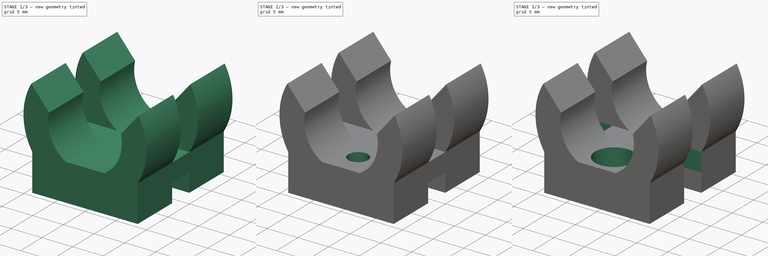
[diagram: build sequence overview — one tinted view per stage of 3, left to right]
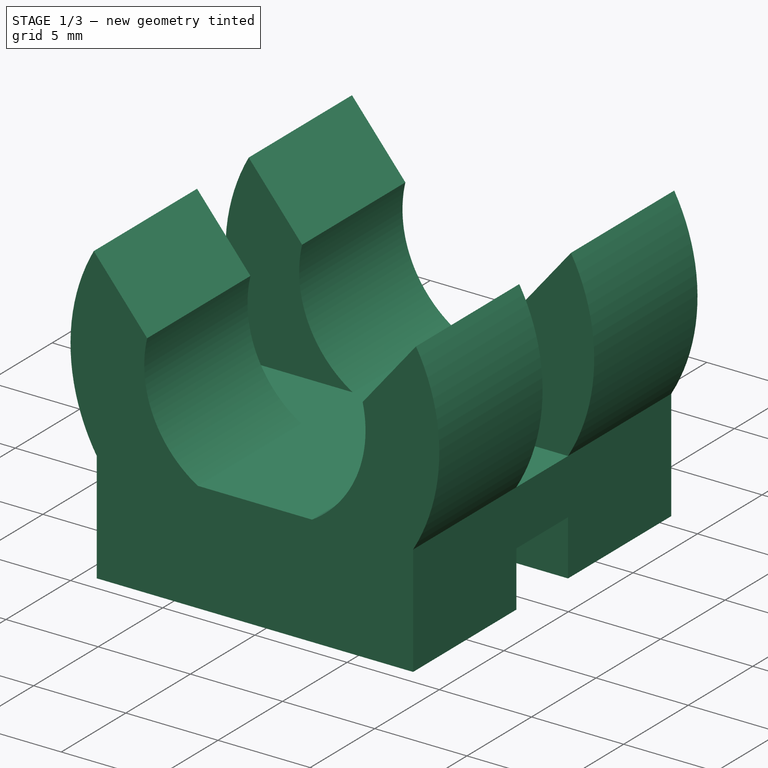
[diagram: stage 1 of 3 — iso view after this stage's code; geometry added in this stage tinted green]
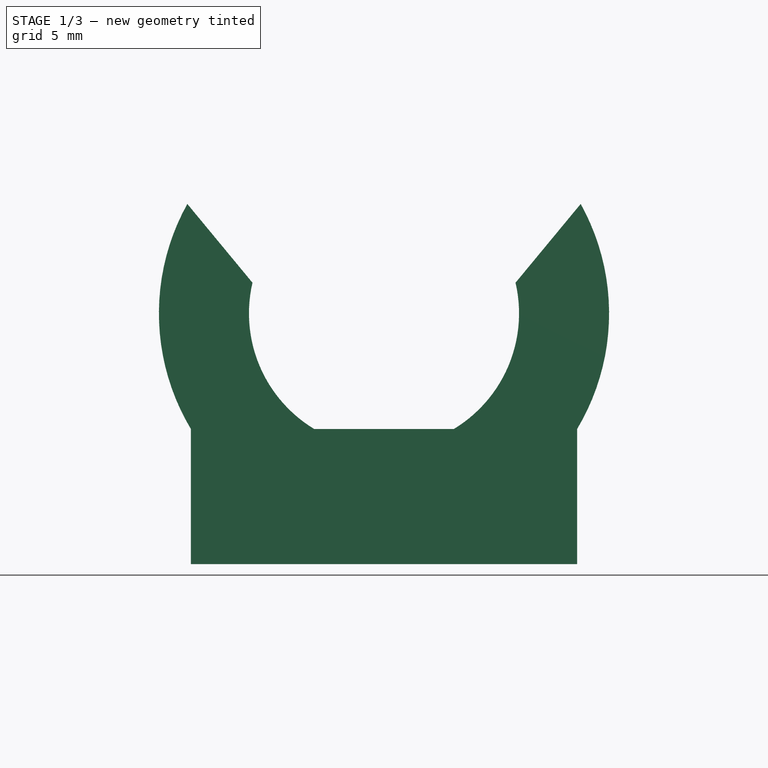
[diagram: stage 1 of 3 — front view after this stage's code; geometry added in this stage tinted green]
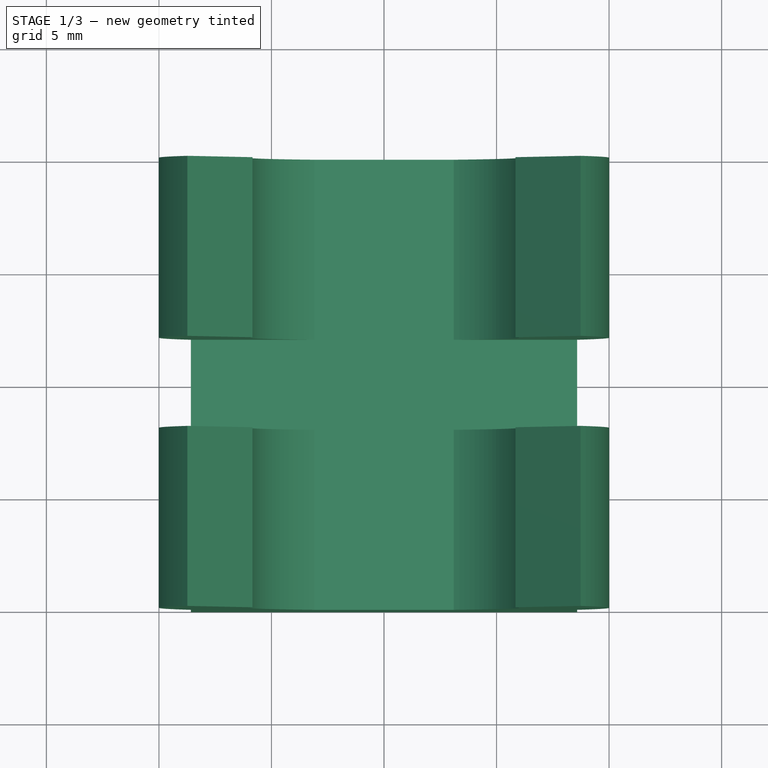
[diagram: stage 1 of 3 — top view after this stage's code; geometry added in this stage tinted green]
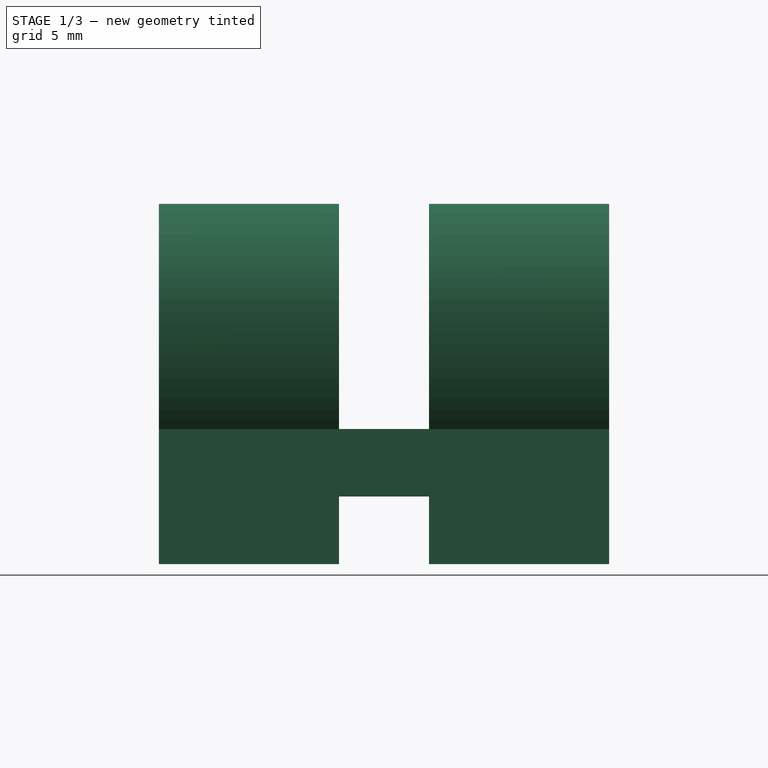
[diagram: stage 1 of 3 — right view after this stage's code; geometry added in this stage tinted green]
FCSTD DOCUMENT  (FreeCAD 0.20R)
Label: cable_holder
License: All rights reserved
LicenseURL: http://en.wikipedia.org/wiki/All_rights_reserved
objects: Sketcher::SketchObject×5, PartDesign::Pocket×4, PartDesign::Pad×1, PartDesign::Body×1
note: 16 computed .brp shape members not serialized (recipe doc carries the construction recipe); baked Part::Feature solids carry a one-line shape summary decoded from their .brp

FEATURE [Sketcher::SketchObject] Sketch
  FullyConstrained = true
  MapMode = 5
  Placement = pos=(0,0,0) rot=(1,0,0;1.5708rad)
  Support = -> [XZ_Plane]
  sketch-geometry (12):
    g0: ArcOfCircle CenterX=0 CenterY=5.13712 CenterZ=0 NormalX=0 NormalY=0 NormalZ=1 AngleXU=0 Radius=10 StartAngle=2.63376 EndAngle=3.6811
    g1: ArcOfCircle CenterX=0 CenterY=5.13712 CenterZ=0 NormalX=0 NormalY=0 NormalZ=1 AngleXU=0 Radius=10 StartAngle=5.74368 EndAngle=6.79102
    g2: ArcOfCircle CenterX=0 CenterY=5.13712 CenterZ=0 NormalX=0 NormalY=0 NormalZ=1 AngleXU=0 Radius=6 StartAngle=2.91245 EndAngle=4.16944
    g3: ArcOfCircle CenterX=0 CenterY=5.13712 CenterZ=0 NormalX=0 NormalY=0 NormalZ=1 AngleXU=0 Radius=6 StartAngle=5.25534 EndAngle=6.51233
    g4: LineSegment StartX=-5.84316 StartY=6.5 StartZ=0 EndX=5.84316 EndY=6.5 EndZ=0
    g5: LineSegment StartX=-3.1 StartY=-9e-16 StartZ=0 EndX=3.1 EndY=-9e-16 EndZ=0
    g6: LineSegment StartX=-5.84316 StartY=6.5 StartZ=0 EndX=-8.73799 EndY=10 EndZ=0
    g7: LineSegment StartX=5.84316 StartY=6.5 StartZ=0 EndX=8.73799 EndY=10 EndZ=0
    g8: LineSegment StartX=-8.73799 StartY=10 StartZ=0 EndX=8.73799 EndY=10 EndZ=0
    g9: LineSegment StartX=-8.57963 StartY=-9e-16 StartZ=0 EndX=-8.57963 EndY=-6 EndZ=0
    g10: LineSegment StartX=-8.57963 StartY=-6 StartZ=0 EndX=8.57963 EndY=-6 EndZ=0
    g11: LineSegment StartX=8.57963 StartY=-6 StartZ=0 EndX=8.57963 EndY=-3.6e-15 EndZ=0
  constraints (35):
    c: PointOnObject(g0,g-2)
    c: PointOnObject(g0,g-1)
    c: Coincident(g1,g0)
    c: PointOnObject(g1,g-1)
    c: Equal(g0,g1)
    c: Radius(g0) = 10
    c: Coincident(g2,g0)
    c: Coincident(g3,g0)
    c: Equal(g2,g3)
    c: Diameter(g2) = 12
    c: Coincident(g4,g2)
    c: Coincident(g4,g3)
    c: Horizontal(g4)
    c: Coincident(g5,g2)
    c: Coincident(g5,g3)
    c: Horizontal(g5)
    c: Coincident(g6,g2)
    c: Coincident(g6,g0)
    c: Coincident(g7,g3)
    c: Coincident(g7,g1)
    c: Coincident(g8,g0)
    c: Coincident(g8,g1)
    c: Horizontal(g8)
    c: Distance(g3,g5) = 6.5
    c: Coincident(g0,g9)
    c: Vertical(g9)
    c: Coincident(g9,g10)
    c: Horizontal(g10)
    c: Coincident(g10,g11)
    c: Coincident(g11,g1)
    c: Vertical(g11)
    c: Distance(g3,g10) = 6
    c: DistanceX(g5,g5) = 6.2
    c: PointOnObject(g2,g-1)
    c: DistanceY(g-1,g1) = 10
FEATURE [PartDesign::Pad] Pad
  Direction = (0,-1,2e-16)
  Length = 20
  Length2 = 10
  Midplane = true
  Placement = pos=(0,0,0) rot=(1,0,0;1.5708rad)
  Profile = -> Sketch
  ReferenceAxis = -> Sketch [N_Axis]
  Type = 0
FEATURE [Sketcher::SketchObject] Sketch001
  ExternalGeometry = -> [Pad]
  FullyConstrained = true
  MapMode = 5
  Placement = pos=(8.57963,0,0) rot=(0.707107,0,0.707107;3.14159rad)
  Support = -> [Pad]
  sketch-geometry (8):
    g0: LineSegment StartX=10 StartY=2 StartZ=0 EndX=0 EndY=2 EndZ=0
    g1: LineSegment StartX=0 StartY=2 StartZ=0 EndX=0 EndY=-2 EndZ=0
    g2: LineSegment StartX=0 StartY=-2 StartZ=0 EndX=10 EndY=-2 EndZ=0
    g3: LineSegment StartX=10 StartY=-2 StartZ=0 EndX=10 EndY=2 EndZ=0
    g4: LineSegment StartX=-6 StartY=2 StartZ=0 EndX=-3 EndY=2 EndZ=0
    g5: LineSegment StartX=-3 StartY=2 StartZ=0 EndX=-3 EndY=-2 EndZ=0
    g6: LineSegment StartX=-3 StartY=-2 StartZ=0 EndX=-6 EndY=-2 EndZ=0
    g7: LineSegment StartX=-6 StartY=-2 StartZ=0 EndX=-6 EndY=2 EndZ=0
  constraints (22):
    c: Coincident(g0,g1)
    c: Coincident(g1,g2)
    c: Coincident(g2,g3)
    c: Coincident(g3,g0)
    c: Horizontal(g0)
    c: Horizontal(g2)
    c: Vertical(g1)
    c: PointOnObject(g1,g-2)
    c: Symmetric(g2,g0,g-1)
    c: Distance(g3) = 4
    c: PointOnObject(g2,g-3)
    c: Coincident(g4,g5)
    c: Coincident(g5,g6)
    c: Coincident(g6,g7)
    c: Coincident(g7,g4)
    c: Horizontal(g4)
    c: Horizontal(g6)
    c: Vertical(g5)
    c: PointOnObject(g4,g-4)
    c: Distance(g6) = 3
    c: Symmetric(g6,g4,g-1)
    c: Distance(g5) = 4
FEATURE [PartDesign::Pocket] Pocket
  BaseFeature = -> Pad
  Direction = (-1,0,2e-16)
  Length = 5
  Length2 = 5
  Midplane = true
  Placement = pos=(0,0,0) rot=(1,0,0;1.5708rad)
  Profile = -> Sketch001
  ReferenceAxis = -> Sketch001 [N_Axis]
  Type = 1
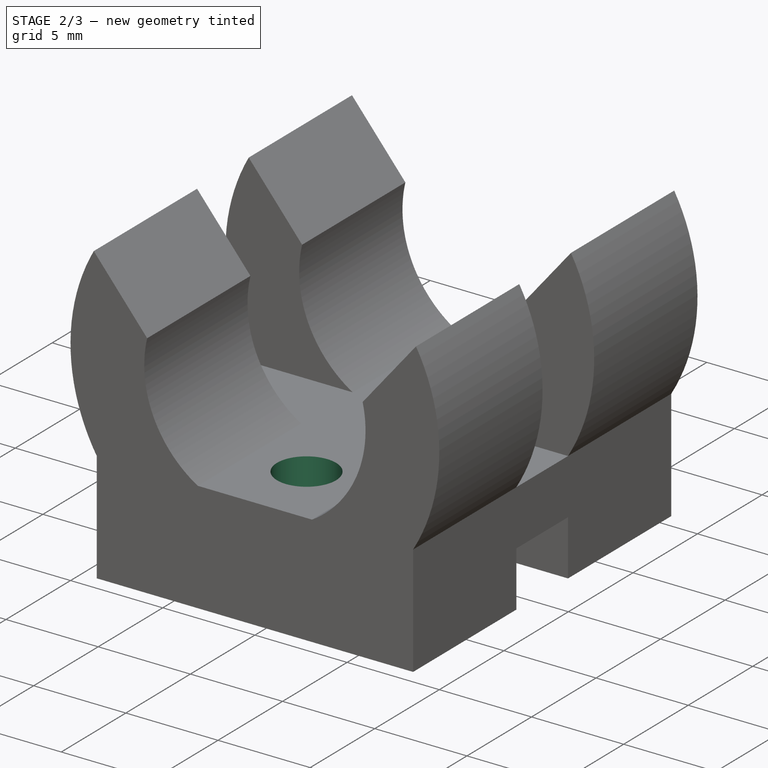
[diagram: stage 2 of 3 — iso view after this stage's code; geometry added in this stage tinted green]
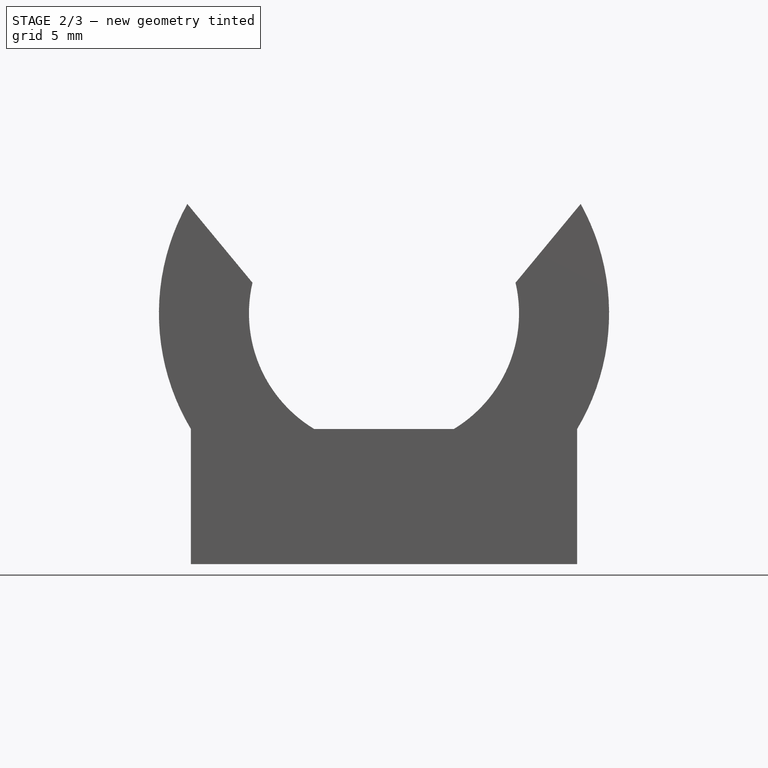
[diagram: stage 2 of 3 — front view after this stage's code; geometry added in this stage tinted green]
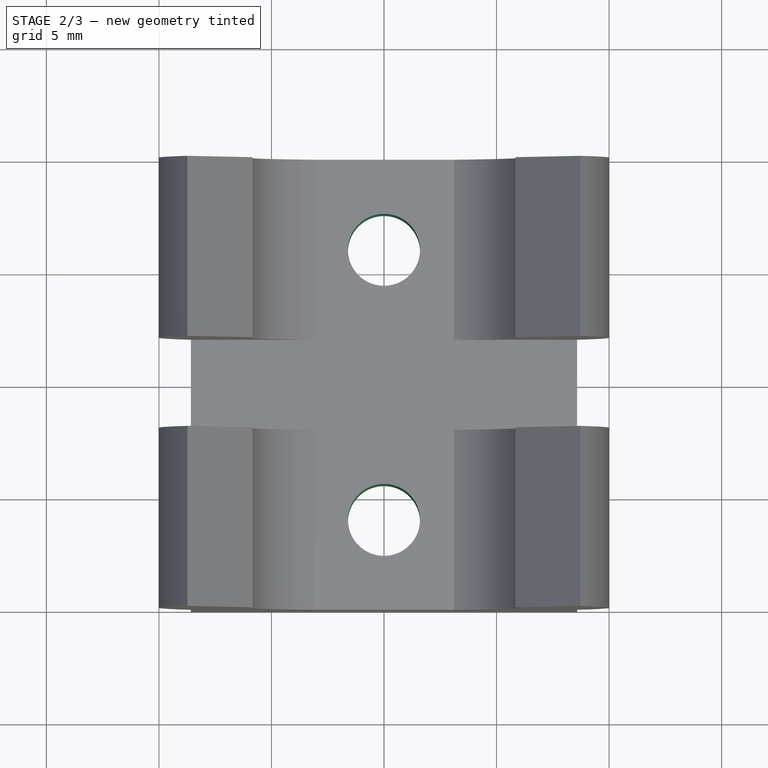
[diagram: stage 2 of 3 — top view after this stage's code; geometry added in this stage tinted green]
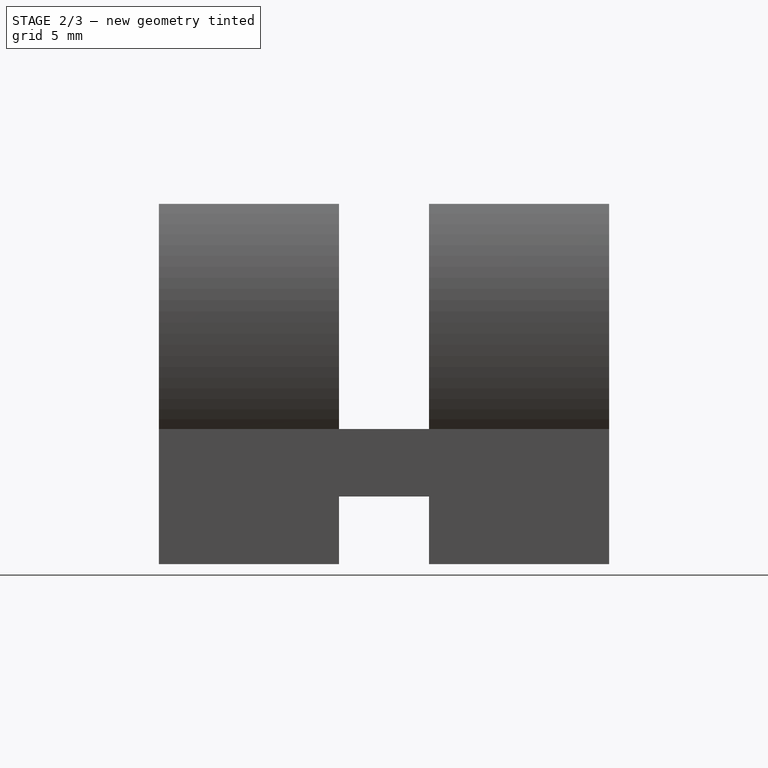
[diagram: stage 2 of 3 — right view after this stage's code; geometry added in this stage tinted green]
FEATURE [Sketcher::SketchObject] Sketch002
  FullyConstrained = true
  MapMode = 5
  Placement = pos=(0,0,-9e-16) rot=(0,0,1;3.14159rad)
  Support = -> [Pocket]
  sketch-geometry (2):
    g0: Circle CenterX=0 CenterY=6 CenterZ=0 NormalX=0 NormalY=0 NormalZ=1 AngleXU=0 Radius=1.6
    g1: Circle CenterX=0 CenterY=-6 CenterZ=0 NormalX=0 NormalY=0 NormalZ=1 AngleXU=0 Radius=1.6
  constraints (5):
    c: PointOnObject(g0,g-2)
    c: Symmetric(g0,g1,g-1)
    c: Diameter(g0) = 3.2
    c: Equal(g1,g0)
    c: DistanceY(g-1,g0) = 6
FEATURE [PartDesign::Pocket] Pocket001
  BaseFeature = -> Pocket
  Direction = (0,-2e-16,-1)
  Length = 5
  Length2 = 5
  Placement = pos=(0,0,0) rot=(1,0,0;1.5708rad)
  Profile = -> Sketch002
  ReferenceAxis = -> Sketch002 [N_Axis]
  Type = 1
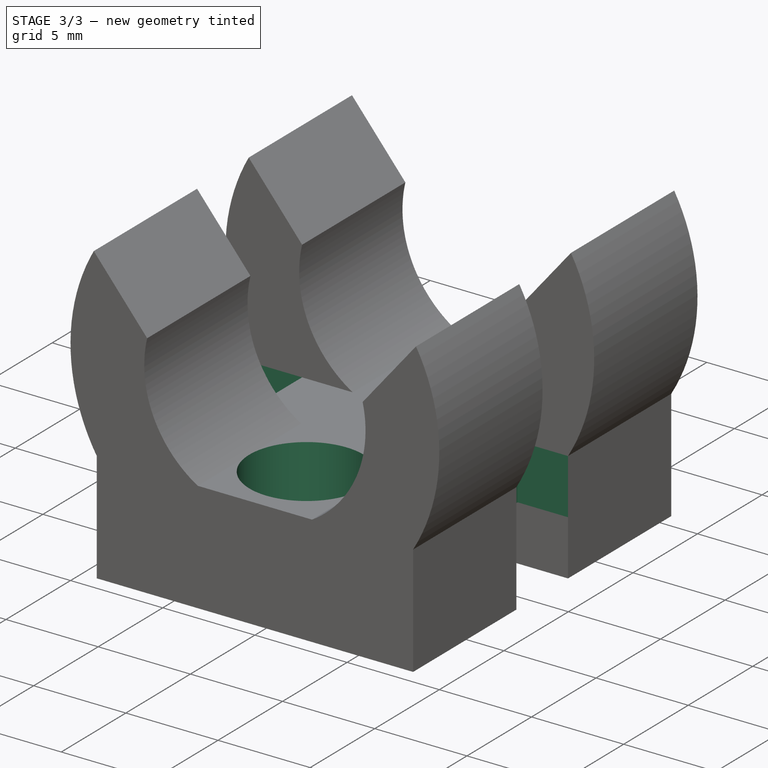
[diagram: stage 3 of 3 — iso view after this stage's code; geometry added in this stage tinted green]
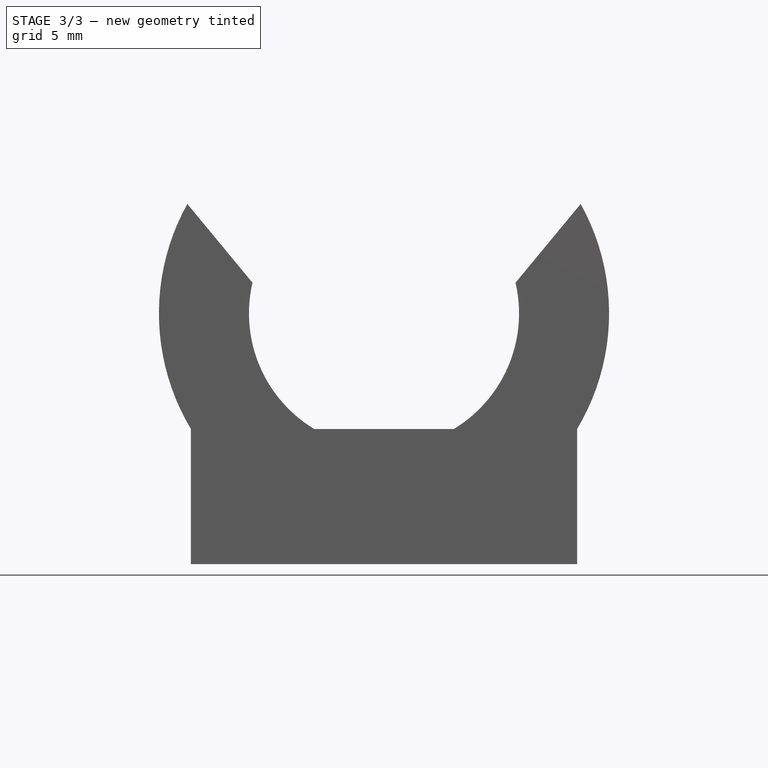
[diagram: stage 3 of 3 — front view after this stage's code; geometry added in this stage tinted green]
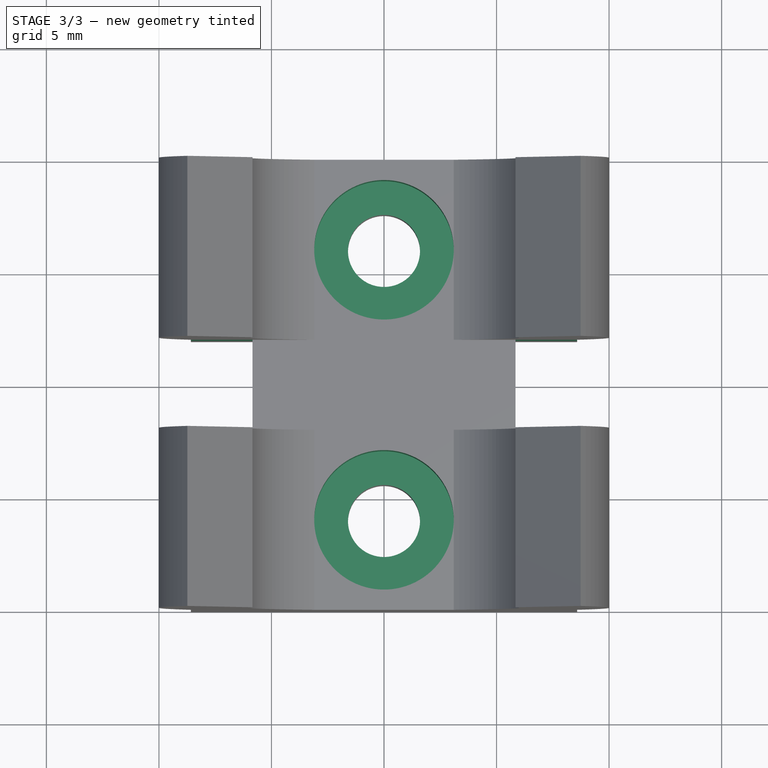
[diagram: stage 3 of 3 — top view after this stage's code; geometry added in this stage tinted green]
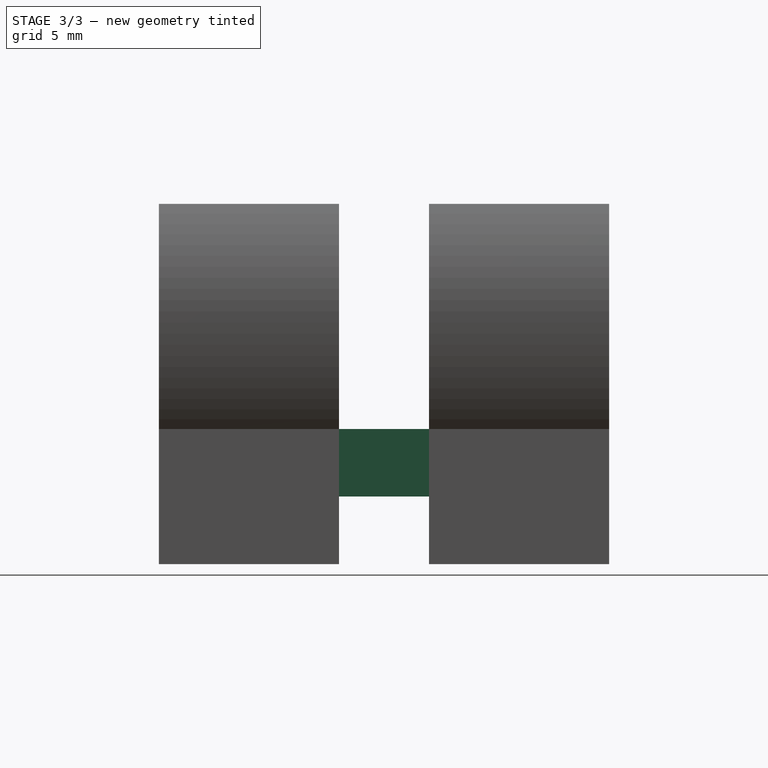
[diagram: stage 3 of 3 — right view after this stage's code; geometry added in this stage tinted green]
FEATURE [Sketcher::SketchObject] Sketch003
  ExternalGeometry = -> [Pocket001]
  FullyConstrained = true
  MapMode = 5
  Placement = pos=(0,0,-9e-16) rot=(0,0,1;3.14159rad)
  Support = -> [Pocket001]
  sketch-geometry (2):
    g0: Circle CenterX=0 CenterY=6 CenterZ=0 NormalX=0 NormalY=0 NormalZ=1 AngleXU=0 Radius=3.1
    g1: Circle CenterX=0 CenterY=-6 CenterZ=0 NormalX=0 NormalY=0 NormalZ=1 AngleXU=0 Radius=3.1
  constraints (4):
    c: Coincident(g0,g-3)
    c: Coincident(g1,g-4)
    c: Diameter(g0) = 6.2
    c: Equal(g1,g0)
FEATURE [PartDesign::Pocket] Pocket002
  BaseFeature = -> Pocket001
  Direction = (0,-2e-16,-1)
  Length = 3
  Length2 = 5
  Placement = pos=(0,0,0) rot=(1,0,0;1.5708rad)
  Profile = -> Sketch003
  ReferenceAxis = -> Sketch003 [N_Axis]
  Type = 0
FEATURE [Sketcher::SketchObject] Sketch004
  ExternalGeometry = -> [Pocket002]
  FullyConstrained = true
  MapMode = 5
  Placement = pos=(0,0,1.9e-15) rot=(0,0,1;3.14159rad)
  Support = -> [Pocket002]
  sketch-geometry (8):
    g0: LineSegment StartX=-8.57963 StartY=2 StartZ=0 EndX=-5.84316 EndY=2 EndZ=0
    g1: LineSegment StartX=-5.84316 StartY=2 StartZ=0 EndX=-5.84316 EndY=-2 EndZ=0
    g2: LineSegment StartX=-5.84316 StartY=-2 StartZ=0 EndX=-8.57963 EndY=-2 EndZ=0
    g3: LineSegment StartX=-8.57963 StartY=-2 StartZ=0 EndX=-8.57963 EndY=2 EndZ=0
    g4: LineSegment StartX=5.84316 StartY=2 StartZ=0 EndX=8.57963 EndY=2 EndZ=0
    g5: LineSegment StartX=8.57963 StartY=2 StartZ=0 EndX=8.57963 EndY=-2 EndZ=0
    g6: LineSegment StartX=8.57963 StartY=-2 StartZ=0 EndX=5.84316 EndY=-2 EndZ=0
    g7: LineSegment StartX=5.84316 StartY=-2 StartZ=0 EndX=5.84316 EndY=2 EndZ=0
  constraints (20):
    c: Coincident(g0,g1)
    c: Coincident(g1,g2)
    c: Coincident(g2,g3)
    c: Coincident(g3,g0)
    c: Horizontal(g0)
    c: Horizontal(g2)
    c: Vertical(g1)
    c: Vertical(g3)
    c: Coincident(g0,g-3)
    c: Coincident(g1,g-5)
    c: Coincident(g4,g5)
    c: Coincident(g5,g6)
    c: Coincident(g6,g7)
    c: Coincident(g7,g4)
    c: Horizontal(g4)
    c: Horizontal(g6)
    c: Vertical(g5)
    c: Vertical(g7)
    c: Coincident(g4,g-9)
    c: Coincident(g5,g-8)
FEATURE [PartDesign::Pocket] Pocket003
  BaseFeature = -> Pocket002
  Direction = (-2e-16,0,-1)
  Length = 5
  Length2 = 5
  Placement = pos=(0,0,0) rot=(1,0,0;1.5708rad)
  Profile = -> Sketch004
  ReferenceAxis = -> Sketch004 [N_Axis]
  Type = 0
FEATURE [PartDesign::Body] Body
  Group = -> [Sketch,Pad,Sketch001,Pocket,Sketch002,Pocket001,Sketch003,Pocket002,Sketch004,Pocket003]
  Origin = -> Origin
  Tip = -> Pocket003
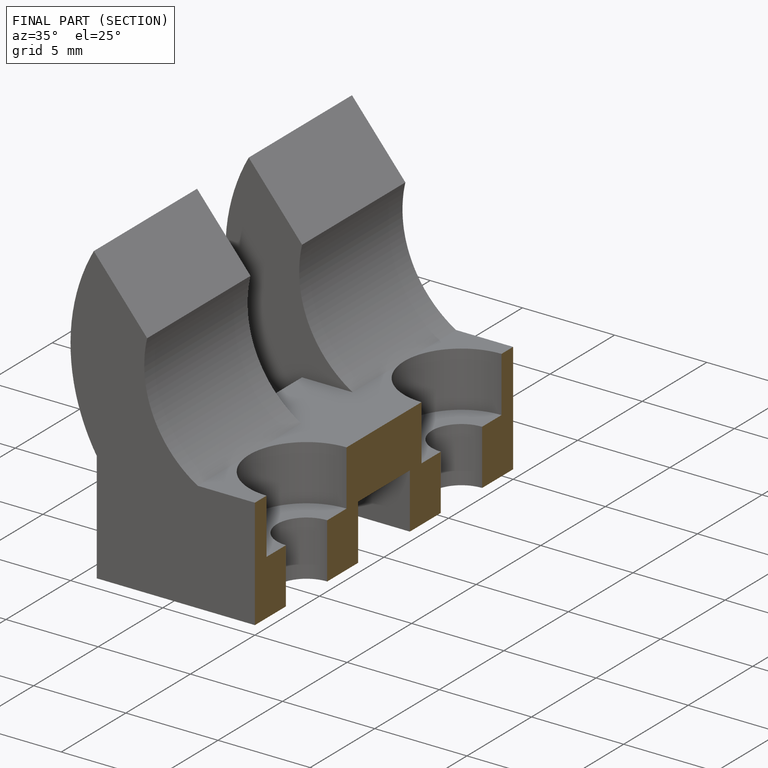
[diagram: finished part — half-section view (interior)]
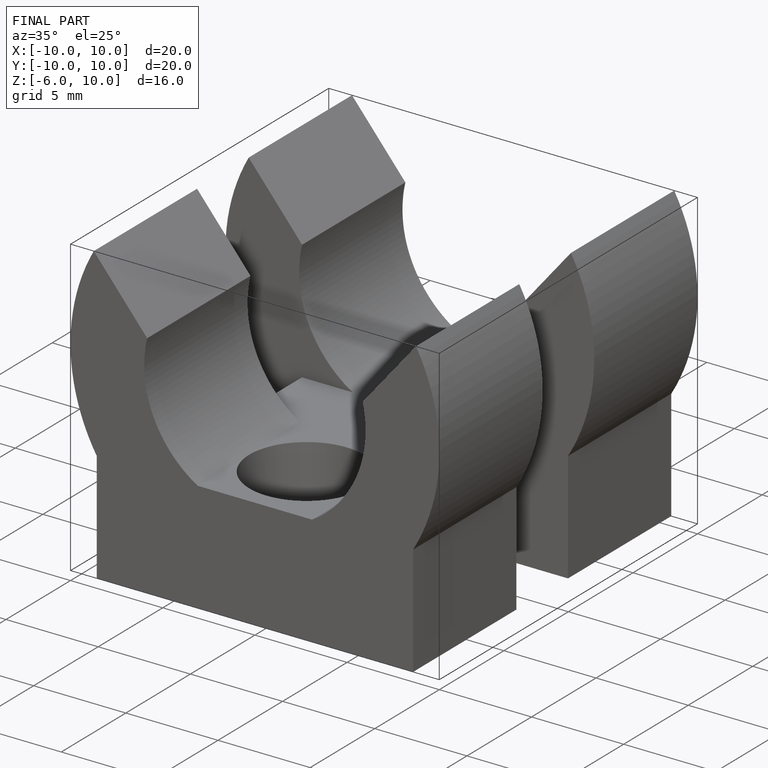
[diagram: finished part — iso view with bounding-box wireframe]
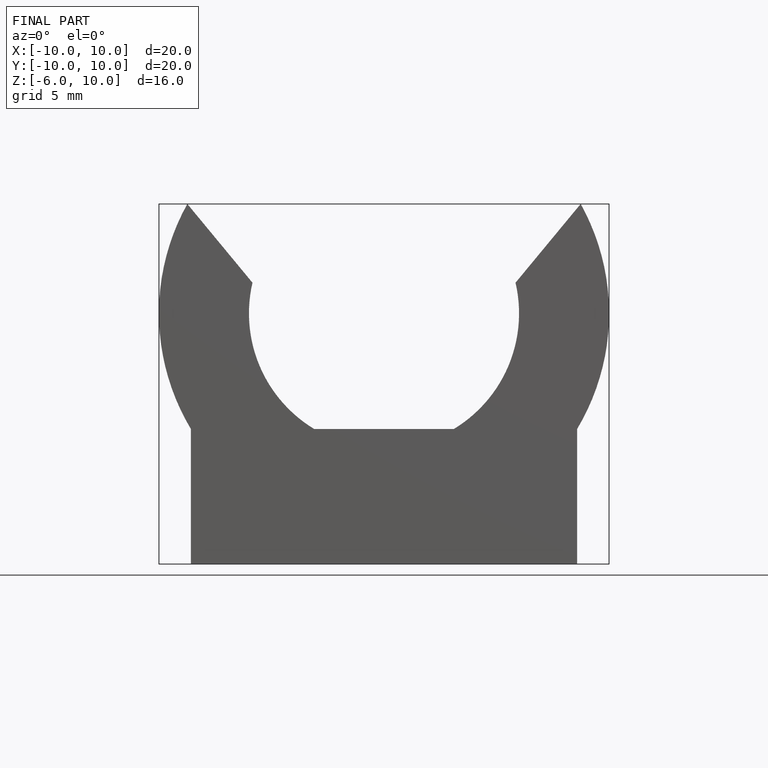
[diagram: finished part — front view with bounding-box wireframe]
